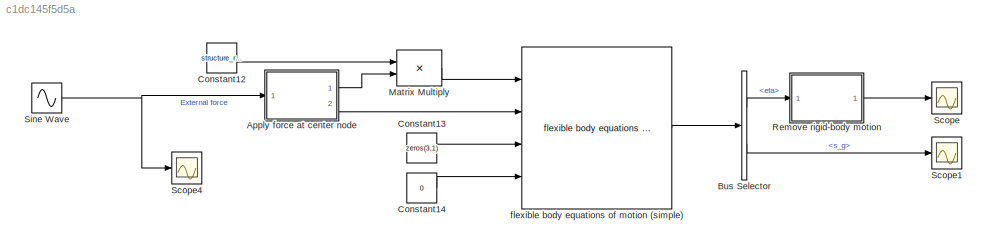
MODEL slx_c1dc145f5d5a
KIND model
CONFIG AbsTol = auto
CONFIG EnableMultiTasking = off
CONFIG FixedStep = auto
CONFIG MaxStep = auto
CONFIG MinStep = auto
CONFIG RelTol = 1e-3
CONFIG SampleTimeConstraint = Unconstrained
CONFIG Solver = VariableStepAuto
CONFIG SolverName = VariableStepAuto
CONFIG StartTime = 0.0
CONFIG StopTime = 10.0
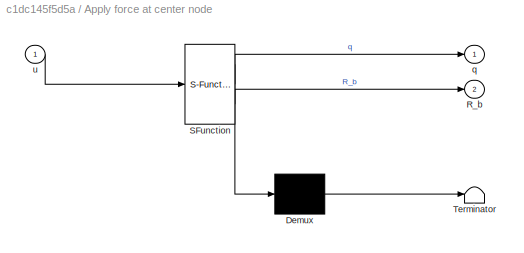
BLOCK [SubSystem] Apply force at center node
  ErrorFcn = Stateflow.Translate.translate
  PermitHierarchicalResolution = ExplicitOnly
  Ports = [1, 2]
  RequestExecContextInheritance = off
  SFBlockType = MATLAB Function
  TreatAsAtomicUnit = on
BLOCK [Demux] Apply force at center node/ Demux 
  Outputs = 1
  Ports = [1, 1]
BLOCK [S-Function] Apply force at center node/ SFunction 
  EnableBusSupport = on
  FunctionName = sf_sfun
  Parameters = structure
  PortCounts = [1 3]
  Ports = [1, 3]
  SFcnIsStateOwnerBlock = off
  SFunctionDeploymentMode = off
  Tag = Stateflow S-Function flexibleBody_lib_example 4
BLOCK [Terminator] Apply force at center node/ Terminator 
BLOCK [Outport] Apply force at center node/R_b
  IconDisplay = Port number
  Port = 2
BLOCK [Outport] Apply force at center node/q
  IconDisplay = Port number
BLOCK [Inport] Apply force at center node/u
  IconDisplay = Port number
BLOCK [BusSelector] Bus Selector
  OutputAsBus = off
  OutputSignals = eta,rigidBodyBus.s_g
  Ports = [1, 2]
BLOCK [Constant] Constant12
  Value = structure_red.modal.T'
BLOCK [Constant] Constant13
  Value = zeros(3,1)
BLOCK [Constant] Constant14
  Value = 0
BLOCK [Product] Matrix Multiply
  InputSameDT = off
  Multiplication = Matrix(*)
  OutDataTypeStr = Inherit: Inherit via internal rule
  Ports = [2, 1]
  RndMeth = Floor
  SaturateOnIntegerOverflow = off
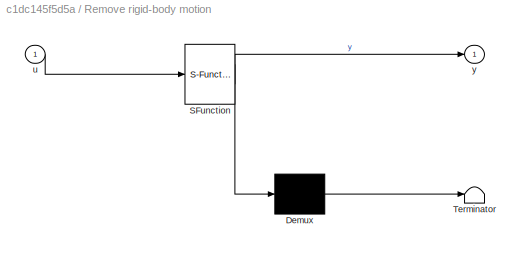
BLOCK [SubSystem] Remove rigid-body motion
  ErrorFcn = Stateflow.Translate.translate
  PermitHierarchicalResolution = ExplicitOnly
  Ports = [1, 1]
  RequestExecContextInheritance = off
  SFBlockType = MATLAB Function
  TreatAsAtomicUnit = on
BLOCK [Demux] Remove rigid-body motion/ Demux 
  Outputs = 1
  Ports = [1, 1]
BLOCK [S-Function] Remove rigid-body motion/ SFunction 
  EnableBusSupport = on
  FunctionName = sf_sfun
  PortCounts = [1 2]
  Ports = [1, 2]
  SFcnIsStateOwnerBlock = off
  SFunctionDeploymentMode = off
  Tag = Stateflow S-Function flexibleBody_lib_example 2
BLOCK [Terminator] Remove rigid-body motion/ Terminator 
BLOCK [Inport] Remove rigid-body motion/u
  IconDisplay = Port number
BLOCK [Outport] Remove rigid-body motion/y
  IconDisplay = Port number
BLOCK [Scope] Scope
  Floating = off
  NumInputPorts = 1
  Ports = [1]
  ScopeSpecificationString = Simulink.scopes.TimeScopeBlockCfg('CurrentConfiguration', extmgr.ConfigurationSet(extmgr.Configuration('Core','General UI',true),extmgr.Configuration('Core','Source UI',true),extmgr.Configuration('Sources','WiredSimulink',true,'DataLoggingVariableName','ScopeData1'),extmgr.Configuration('Visuals','Time Domain',true,'SerializedDisplays',{struct('MinYLimReal','-0.00217','MaxYLimReal','0.00217','YLab...<+1875ch>
BLOCK [Scope] Scope1
  Floating = off
  NumInputPorts = 1
  Ports = [1]
  ScopeSpecificationString = Simulink.scopes.TimeScopeBlockCfg('CurrentConfiguration', extmgr.ConfigurationSet(extmgr.Configuration('Core','General UI',true),extmgr.Configuration('Core','Source UI',true),extmgr.Configuration('Sources','WiredSimulink',true,'DataLoggingVariableName','ScopeData2'),extmgr.Configuration('Visuals','Time Domain',true,'SerializedDisplays',{struct('MinYLimReal','-6.97356','MaxYLimReal','62.76203','YLa...<+1413ch>
BLOCK [Scope] Scope4
  Floating = off
  NumInputPorts = 1
  Ports = [1]
  ScopeSpecificationString = Simulink.scopes.TimeScopeBlockCfg('CurrentConfiguration', extmgr.ConfigurationSet(extmgr.Configuration('Core','General UI',true),extmgr.Configuration('Core','Source UI',true),extmgr.Configuration('Sources','WiredSimulink',true),extmgr.Configuration('Visuals','Time Domain',true,'SerializedDisplays',{struct('MinYLimReal','-1.25','MaxYLimReal','1.25','YLabelReal','','MinYLimMag','0.00000','MaxYLimMag...<+1360ch>
BLOCK [Sin] Sine Wave
  Ports = [0, 1]
  SampleTime = 0
BLOCK [Reference] flexible body equations of motion (simple)  REF=flexibleBody_lib/flexible body equations of motion
(simple)
  Ports = [4, 1]
  SourceBlock = flexibleBody_lib/flexible body equations of motion\n(simple)
  SourceProductName = LADAC
LINE Apply force at center node:1 -> Matrix Multiply:2
LINE Apply force at center node:2 -> flexible body equations of motion (simple):2
LINE Bus Selector:1 -> Remove rigid-body motion:1
LINE Bus Selector:2 -> Scope1:1
LINE Constant12:1 -> Matrix Multiply:1
LINE Constant13:1 -> flexible body equations of motion (simple):3
LINE Constant14:1 -> flexible body equations of motion (simple):4
LINE Matrix Multiply:1 -> flexible body equations of motion (simple):1
LINE Remove rigid-body motion:1 -> Scope:1
NET Sine Wave:1 -> Apply force at center node:1, Scope4:1
LINE flexible body equations of motion (simple):1 -> Bus Selector:1
note: NET lines group one-source signal fan-out (src -> all destinations, sorted); 1:1 wires keep LINE
CHART Remove rigid-body motion states=1 transitions=1
  STATE_LABEL 'eML_blk_kernel()'
  STATE_LABEL 'SCRIPT:\nfunction y = fcn(u)\ny = u(7:end);\nend'
CHART Apply force at center node states=1 transitions=1
  STATE_LABEL 'eML_blk_kernel()'
  STATE_LABEL 'SCRIPT:\nfunction [q,R_b] = fcn(u,structure)\nnum_nodes = size(structure.xyz,2);\nq = zeros(6*num_nodes,1);\nq((num_nodes/2-0.5)*6+3) = u;\nR_b = zeros(3,1);\nR_b(3) = u;\nend'
